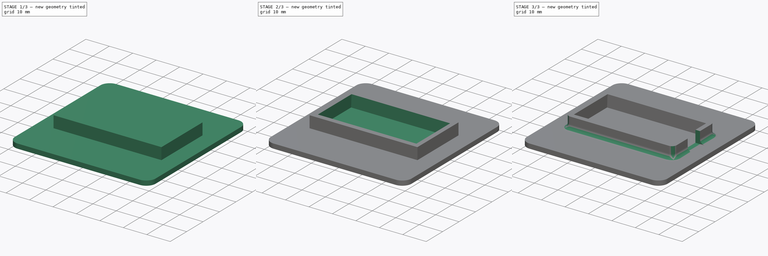
[diagram: build sequence overview — one tinted view per stage of 3, left to right]
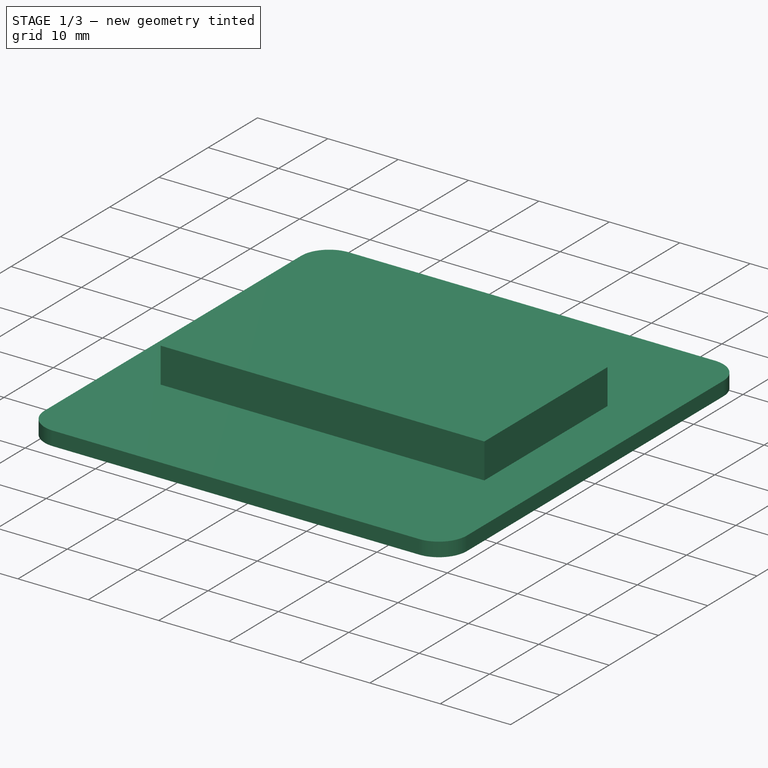
[diagram: stage 1 of 3 — iso view after this stage's code; geometry added in this stage tinted green]
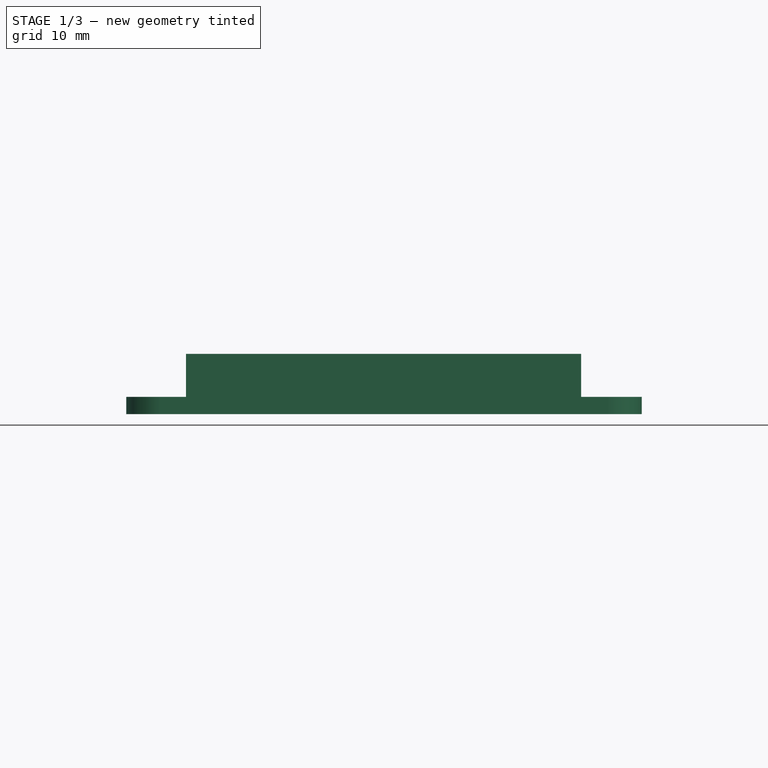
[diagram: stage 1 of 3 — front view after this stage's code; geometry added in this stage tinted green]
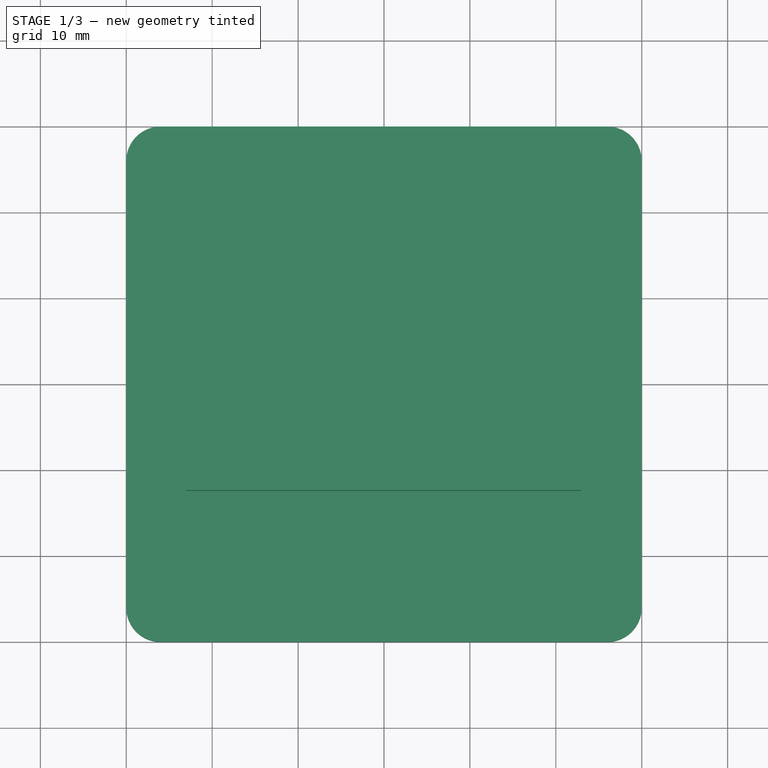
[diagram: stage 1 of 3 — top view after this stage's code; geometry added in this stage tinted green]
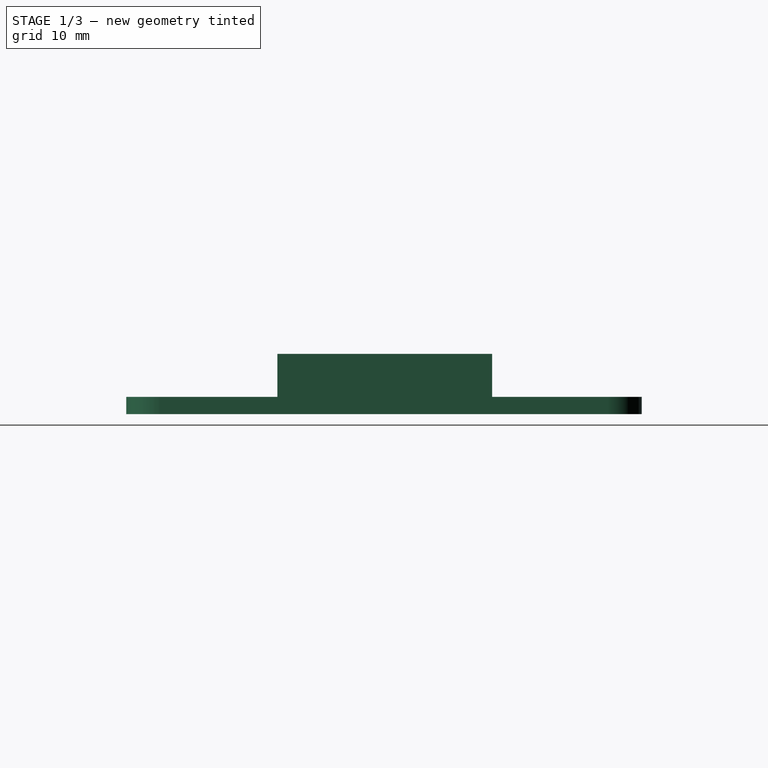
[diagram: stage 1 of 3 — right view after this stage's code; geometry added in this stage tinted green]
FCSTD DOCUMENT  (FreeCAD 0.16R6707 (Git))
Label: servo_support
Comment: It has been modeled using a caliper and a real Futaba 3003 servo
License: CC-BY 3.0
LicenseURL: http://creativecommons.org/licenses/by/3.0/
objects: Sketcher::SketchObject×4, PartDesign::Pad×3, Part::Feature×2, Part::Cut×1, PartDesign::Pocket×1, PartDesign::Fillet×1
note: 16 computed .brp shape members not serialized (recipe doc carries the construction recipe); baked Part::Feature solids carry a one-line shape summary decoded from their .brp

FEATURE [Sketcher::SketchObject] Sketch004  label="Outer-support-sketch"
  Placement = pos=(0,0,-2) rot=(0,0,1;0rad)
  sketch-geometry (8):
    g0: LineSegment StartX=-26 StartY=30 StartZ=0 EndX=26 EndY=30 EndZ=0
    g1: LineSegment StartX=30 StartY=26 StartZ=0 EndX=30 EndY=-26 EndZ=0
    g2: LineSegment StartX=26 StartY=-30 StartZ=0 EndX=-26 EndY=-30 EndZ=0
    g3: LineSegment StartX=-30 StartY=-26 StartZ=0 EndX=-30 EndY=26 EndZ=0
    g4: ArcOfCircle CenterX=-26 CenterY=26 CenterZ=0 NormalX=0 NormalY=0 NormalZ=1 Radius=4 StartAngle=1.5708 EndAngle=3.14159
    g5: ArcOfCircle CenterX=26 CenterY=26 CenterZ=0 NormalX=0 NormalY=0 NormalZ=1 Radius=4 StartAngle=0 EndAngle=1.5708
    g6: ArcOfCircle CenterX=26 CenterY=-26 CenterZ=0 NormalX=0 NormalY=0 NormalZ=1 Radius=4 StartAngle=4.71239 EndAngle=6.28319
    g7: ArcOfCircle CenterX=-26 CenterY=-26 CenterZ=0 NormalX=0 NormalY=0 NormalZ=1 Radius=4 StartAngle=3.14159 EndAngle=4.71239
  constraints (19):
    c: Horizontal(g0)
    c: Horizontal(g2)
    c: Vertical(g1)
    c: Vertical(g3)
    c: Tangent(g0,g4) = 1.5708
    c: Tangent(g3,g4) = 1.5708
    c: Tangent(g0,g5) = 1.5708
    c: Tangent(g1,g5) = 1.5708
    c: Tangent(g1,g6) = 1.5708
    c: Tangent(g2,g6) = 1.5708
    c: Tangent(g2,g7) = 1.5708
    c: Tangent(g3,g7) = 1.5708
    c: Equal(g4,g5)
    c: Equal(g5,g6)
    c: Equal(g6,g7)
    c: Radius(g4) = 4
    c: Symmetric(g4,g6,g-1)
    c: Equal(g0,g1)
    c: DistanceX(g3,g1) = 60
FEATURE [PartDesign::Pad] Pad003  label="Support-1"
  Length = 2
  Length2 = 100
  Placement = pos=(0,0,-2) rot=(0,0,1;0rad)
  Sketch = -> Sketch004
  Type = 0
FEATURE [Sketcher::SketchObject] Sketch003  label="inner-base-sketch"
  Support = -> Pad003 [Face10]
  sketch-geometry (4):
    g0: LineSegment StartX=-23.0482 StartY=12.5862 StartZ=0 EndX=22.9518 EndY=12.5862 EndZ=0
    g1: LineSegment StartX=22.9518 StartY=12.5862 StartZ=0 EndX=22.9518 EndY=-12.4138 EndZ=0
    g2: LineSegment StartX=22.9518 StartY=-12.4138 StartZ=0 EndX=-23.0482 EndY=-12.4138 EndZ=0
    g3: LineSegment StartX=-23.0482 StartY=-12.4138 StartZ=0 EndX=-23.0482 EndY=12.5862 EndZ=0
  constraints (10):
    c: Coincident(g0,g1)
    c: Coincident(g1,g2)
    c: Coincident(g2,g3)
    c: Coincident(g3,g0)
    c: Horizontal(g0)
    c: Horizontal(g2)
    c: Vertical(g1)
    c: Vertical(g3)
    c: DistanceY(g3,g3) = 25
    c: DistanceX(g0,g0) = 46
FEATURE [PartDesign::Pad] Pad004  label="Support-2"
  Length = 5
  Length2 = 100
  Placement = pos=(0,0,-2) rot=(0,0,1;0rad)
  Sketch = -> Sketch003
  Type = 0
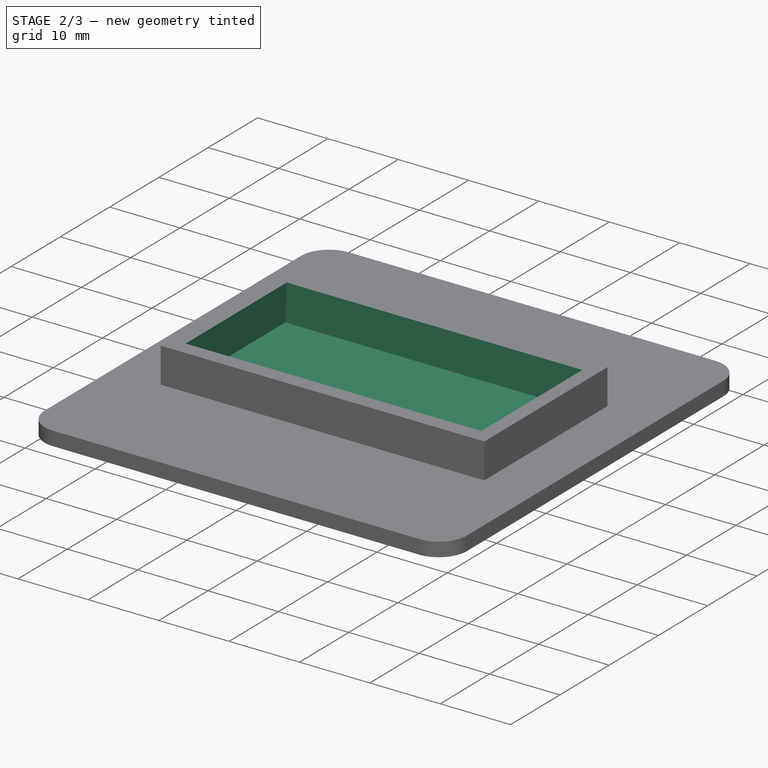
[diagram: stage 2 of 3 — iso view after this stage's code; geometry added in this stage tinted green]
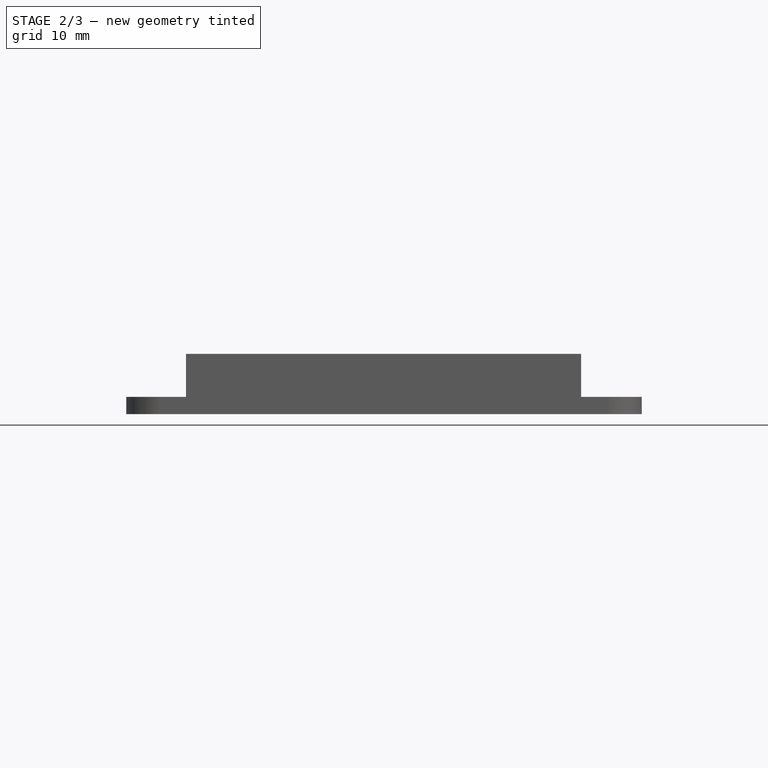
[diagram: stage 2 of 3 — front view after this stage's code; geometry added in this stage tinted green]
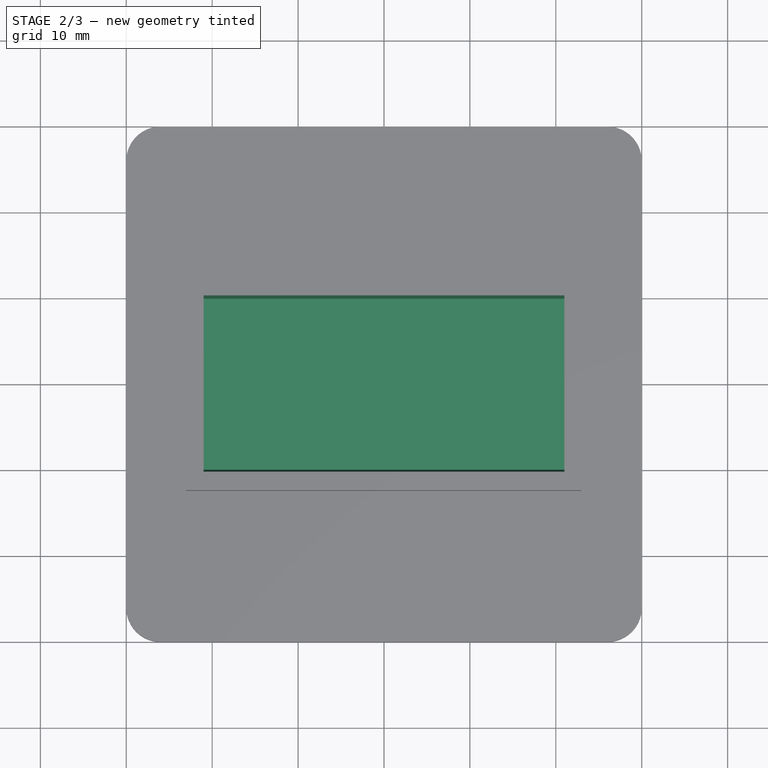
[diagram: stage 2 of 3 — top view after this stage's code; geometry added in this stage tinted green]
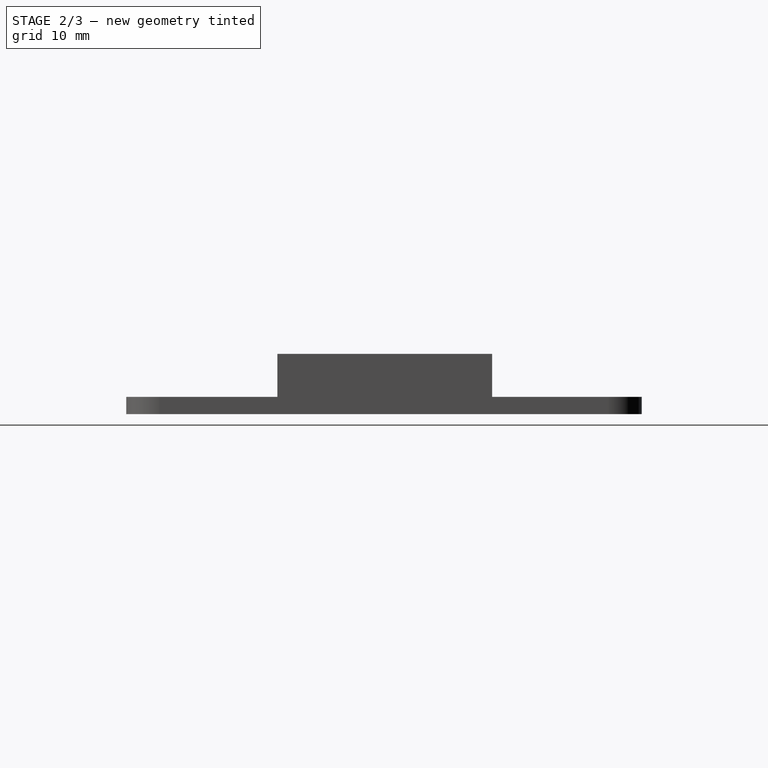
[diagram: stage 2 of 3 — right view after this stage's code; geometry added in this stage tinted green]
FEATURE [Part::Feature] Fusion009002001  label="Servo-Futaba3003-final001"
  shape: bbox 55.5 x 20 x 41.74 mm, 365 faces (baked)
FEATURE [Part::Feature] Fusion009003001  label="servo-wires001"
  Placement = pos=(20,0,2.9) rot=(0,0,1;0rad)
  shape: bbox 10 x 3.6 x 1.2 mm, 13 faces, 3 solids (baked)
FEATURE [Sketcher::SketchObject] Sketch  label="cutout-section-sketch"
  Placement = pos=(0,0,0) rot=(0.57735,0.57735,0.57735;2.0944rad)
  sketch-geometry (5):
    g0: LineSegment StartX=-10.2864 StartY=5.5 StartZ=0 EndX=10.2864 EndY=5.5 EndZ=0
    g1: LineSegment StartX=10.2864 StartY=5.5 StartZ=0 EndX=9.95 EndY=0 EndZ=0
    g2: LineSegment StartX=9.95 StartY=0 StartZ=0 EndX=-9.95 EndY=0 EndZ=0
    g3: LineSegment StartX=-9.95 StartY=0 StartZ=0 EndX=-10.2864 EndY=5.5 EndZ=0
    g4: LineSegment [constr] StartX=-9.95 StartY=0 StartZ=0 EndX=-9.95 EndY=5.5 EndZ=0
  constraints (15):
    c: Horizontal(g0)
    c: Coincident(g0,g1)
    c: Coincident(g1,g2)
    c: Horizontal(g2)
    c: Coincident(g2,g3)
    c: Coincident(g3,g0)
    c: Symmetric(g0,g0,g-2)
    c: Symmetric(g2,g1,g-2)
    c: PointOnObject(g2,g-1)
    c: DistanceX(g2,g2) = 19.9
    c: Coincident(g4,g2)
    c: PointOnObject(g4,g0)
    c: Vertical(g4)
    c: Angle(g4,g3) = 0.0610865
    c: DistanceY(g2,g0) = 5.5
FEATURE [PartDesign::Pad] Pad  label="cutout"
  Length = 42
  Length2 = 100
  Midplane = true
  Placement = pos=(0,0,0) rot=(0.57735,0.57735,0.57735;2.0944rad)
  Sketch = -> Sketch
  Type = 0
FEATURE [Part::Cut] Cut  label="Support-3"
  Base = -> Pad004
  Tool = -> Pad
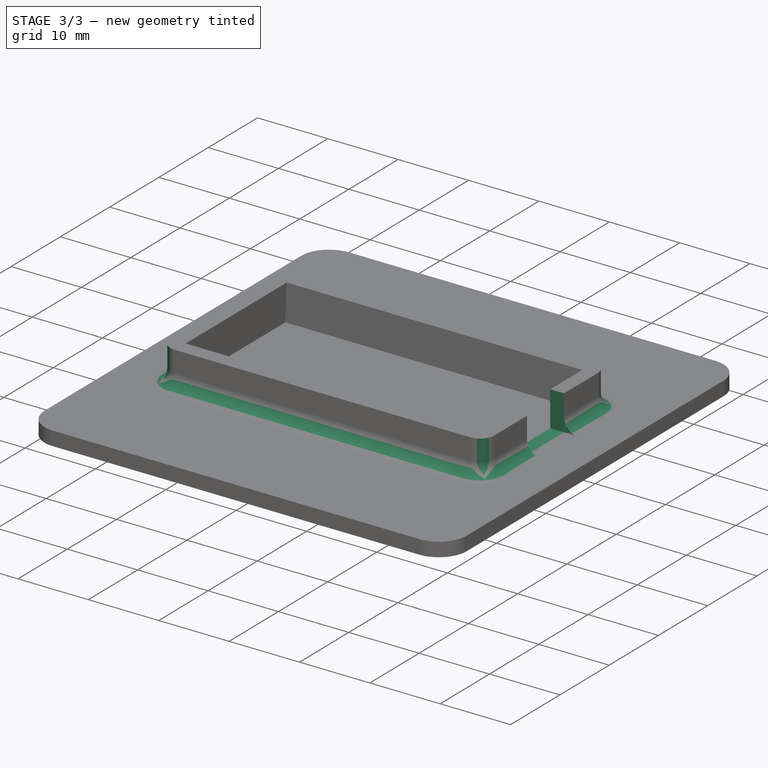
[diagram: stage 3 of 3 — iso view after this stage's code; geometry added in this stage tinted green]
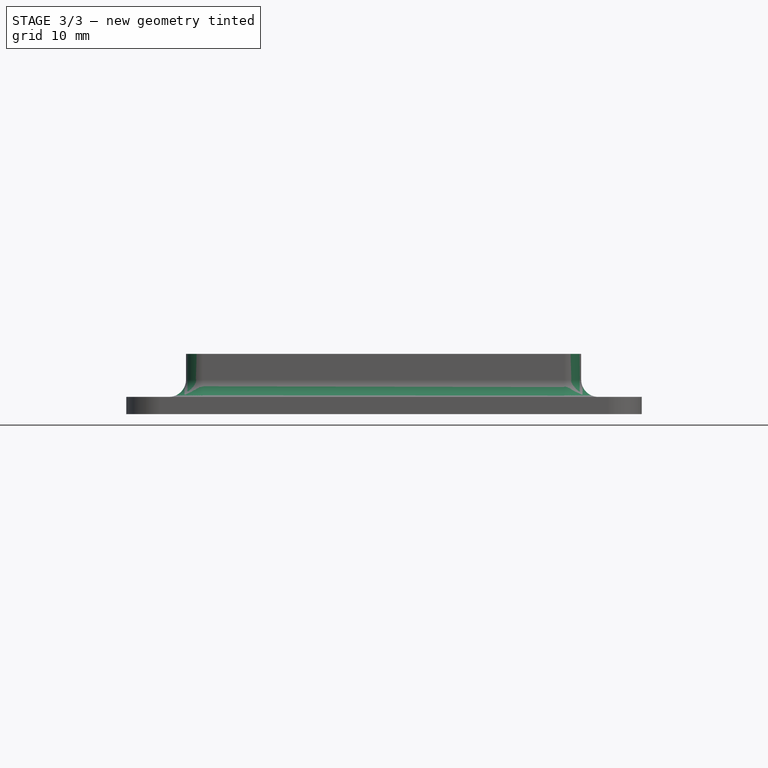
[diagram: stage 3 of 3 — front view after this stage's code; geometry added in this stage tinted green]
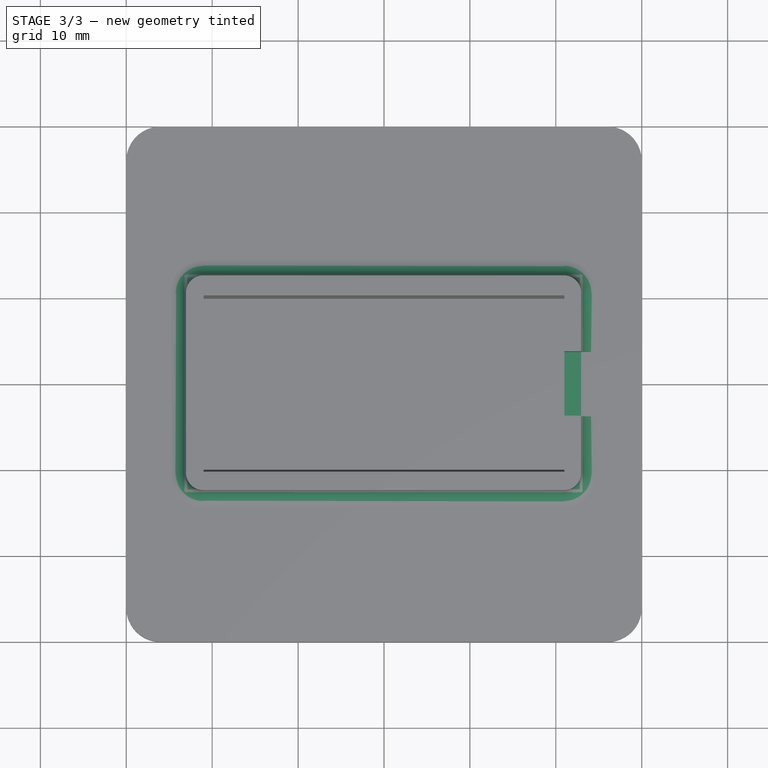
[diagram: stage 3 of 3 — top view after this stage's code; geometry added in this stage tinted green]
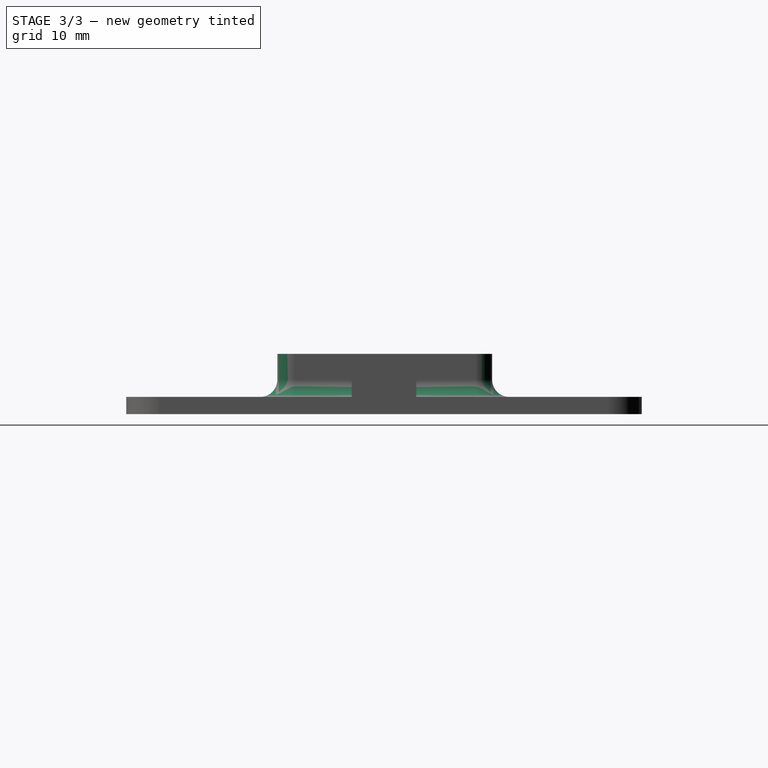
[diagram: stage 3 of 3 — right view after this stage's code; geometry added in this stage tinted green]
FEATURE [Sketcher::SketchObject] Sketch002  label="wire-cutout-sketch"
  Placement = pos=(22.9518,0,0) rot=(0.57735,0.57735,0.57735;2.0944rad)
  Support = -> Cut [Face12]
  sketch-geometry (4):
    g0: LineSegment StartX=-3.75 StartY=6 StartZ=0 EndX=3.75 EndY=6 EndZ=0
    g1: LineSegment StartX=3.75 StartY=6 StartZ=0 EndX=3.75 EndY=0 EndZ=0
    g2: LineSegment StartX=3.75 StartY=0 StartZ=0 EndX=-3.75 EndY=0 EndZ=0
    g3: LineSegment StartX=-3.75 StartY=0 StartZ=0 EndX=-3.75 EndY=6 EndZ=0
  constraints (12):
    c: Coincident(g0,g1)
    c: Coincident(g1,g2)
    c: Coincident(g2,g3)
    c: Coincident(g3,g0)
    c: Horizontal(g0)
    c: Horizontal(g2)
    c: Vertical(g1)
    c: Vertical(g3)
    c: Symmetric(g0,g0,g-2)
    c: DistanceX(g0,g0) = 7.5
    c: PointOnObject(g2,g-1)
    c: DistanceY(g3,g3) = 6
FEATURE [PartDesign::Pocket] Pocket  label="Support-4"
  Length = 5
  Sketch = -> Sketch002
  Type = 2
FEATURE [PartDesign::Fillet] Fillet  label="Final-support-with-fillet"
  Base = -> Pocket [Edge37,Edge25,Edge36,Edge28,Edge45,Edge27,Edge39,Edge26,Edge43]
  Radius = 2
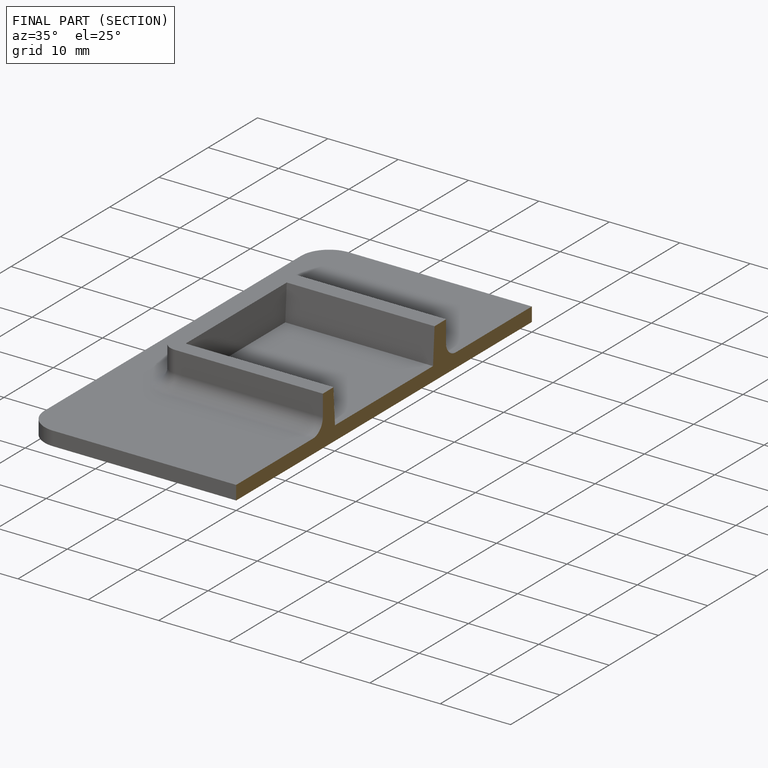
[diagram: finished part — half-section view (interior)]
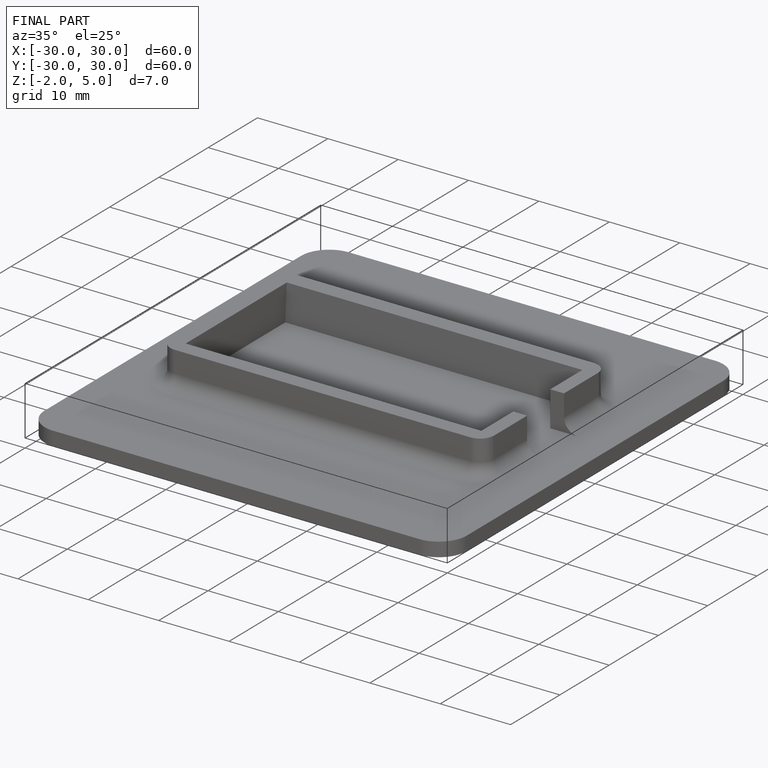
[diagram: finished part — iso view with bounding-box wireframe]
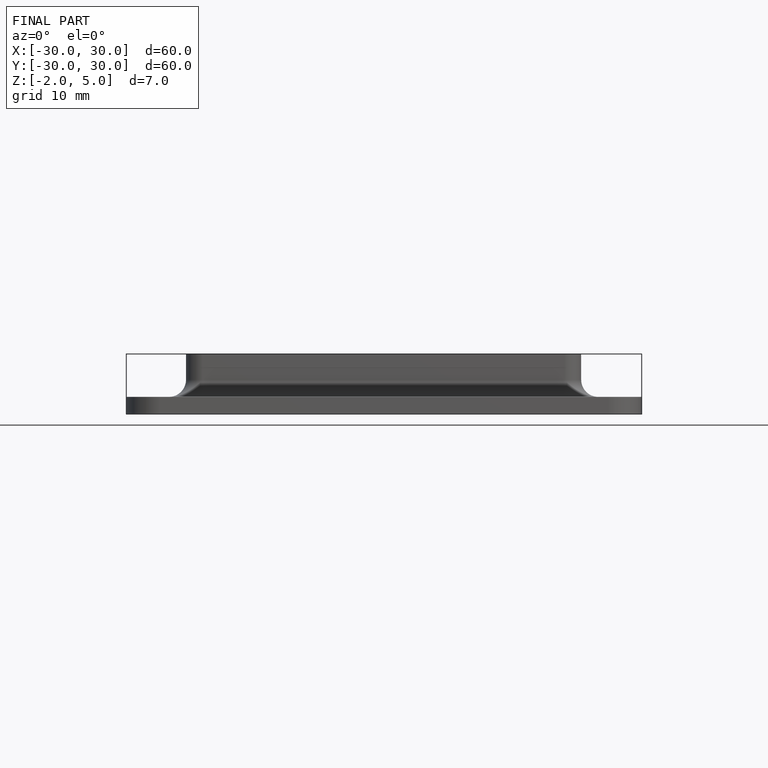
[diagram: finished part — front view with bounding-box wireframe]
